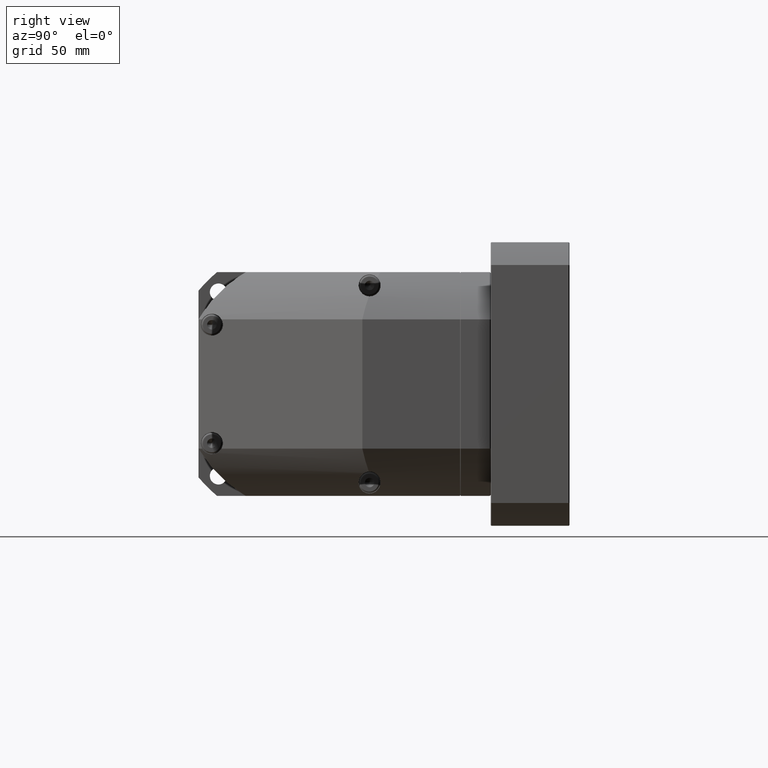
[diagram: clean part render]
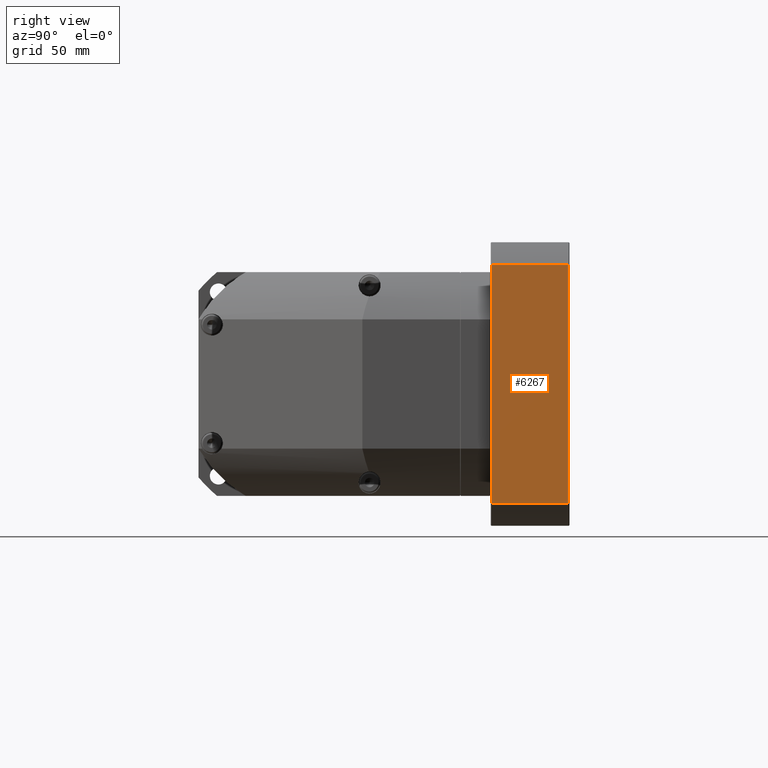
[diagram: same view with one face highlighted and labeled with its STEP entity id]
A machine part, right view. The second image highlights one B-rep face of the part: STEP entity #6267.
In plain terms, the highlighted planar face has unit normal (-1, 0, 0).
Its self-contained STEP definition (entity closure, byte-faithful):
#4385=DIRECTION('',(1.E0,0.E0,0.E0));
#4386=VECTOR('',#4385,4.9E1);
#4387=CARTESIAN_POINT('',(5.E-1,-7.553972464869E1,-9.E1));
#4388=LINE('',#4387,#4386);
#4397=DIRECTION('',(-1.E0,0.E0,0.E0));
#4398=VECTOR('',#4397,4.9E1);
#4399=CARTESIAN_POINT('',(4.95E1,7.553972464869E1,-9.E1));
#4400=LINE('',#4399,#4398);
#4473=DIRECTION('',(0.E0,1.E0,0.E0));
#4474=VECTOR('',#4473,1.510794492974E2);
#4475=CARTESIAN_POINT('',(4.95E1,-7.553972464869E1,-9.E1));
#4476=LINE('',#4475,#4474);
#4481=CARTESIAN_POINT('',(4.95E1,-7.553972464869E1,-9.E1));
#5537=DIRECTION('',(0.E0,-1.E0,0.E0));
#5538=VECTOR('',#5537,1.510794492974E2);
#5539=CARTESIAN_POINT('',(5.E-1,7.553972464869E1,-9.E1));
#5540=LINE('',#5539,#5538);
#5562=CARTESIAN_POINT('',(5.E-1,-7.553972464869E1,-9.E1));
#5656=VERTEX_POINT('',#4481);
#5712=CARTESIAN_POINT('',(4.95E1,7.553972464869E1,-9.E1));
#5713=CARTESIAN_POINT('',(5.E-1,7.553972464869E1,-9.E1));
#5714=VERTEX_POINT('',#5712);
#5715=VERTEX_POINT('',#5713);
#5757=VERTEX_POINT('',#5562);
#6253=CARTESIAN_POINT('',(5.E1,-9.E1,-9.E1));
#6254=DIRECTION('',(0.E0,0.E0,1.E0));
#6255=DIRECTION('',(1.E0,0.E0,0.E0));
#6256=AXIS2_PLACEMENT_3D('',#6253,#6254,#6255);
#6257=PLANE('',#6256);
#6259=ORIENTED_EDGE('',*,*,#6258,.T.);
#6261=ORIENTED_EDGE('',*,*,#6260,.T.);
#6262=ORIENTED_EDGE('',*,*,#6243,.T.);
#6264=ORIENTED_EDGE('',*,*,#6263,.T.);
#6265=EDGE_LOOP('',(#6259,#6261,#6262,#6264));
#6266=FACE_OUTER_BOUND('',#6265,.F.);
#6267=ADVANCED_FACE('',(#6266),#6257,.F.);
#6243=EDGE_CURVE('',#5757,#5656,#4388,.T.);
#6258=EDGE_CURVE('',#5714,#5715,#4400,.T.);
#6260=EDGE_CURVE('',#5715,#5757,#5540,.T.);
#6263=EDGE_CURVE('',#5656,#5714,#4476,.T.);